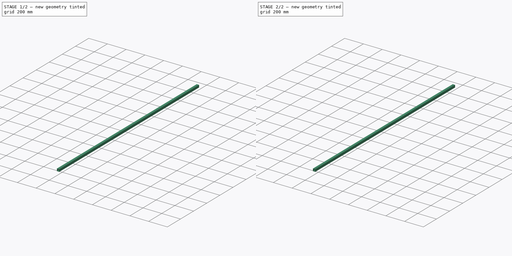
[diagram: build sequence overview — one tinted view per stage of 2, left to right]
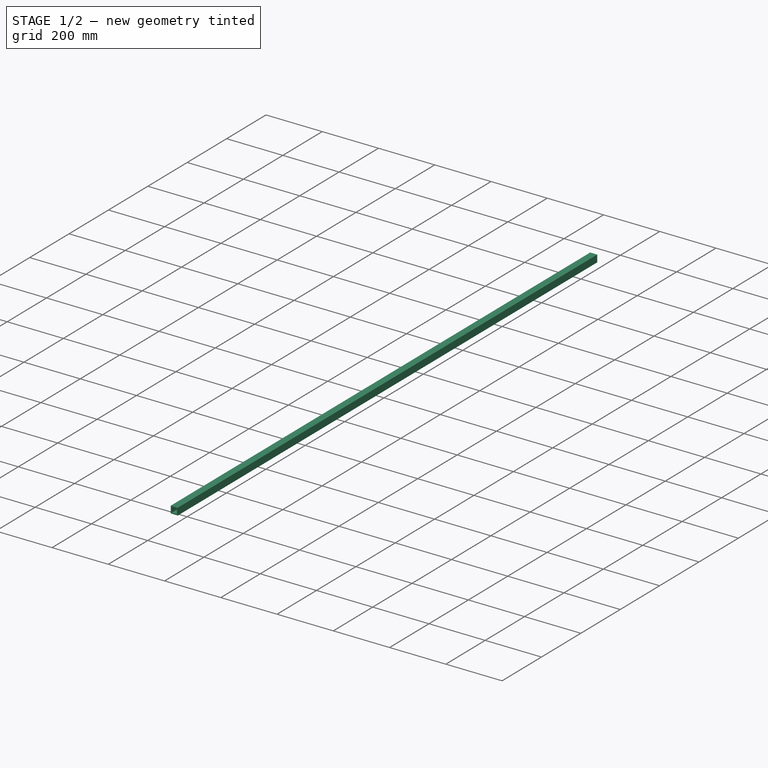
[diagram: stage 1 of 2 — iso view after this stage's code; geometry added in this stage tinted green]
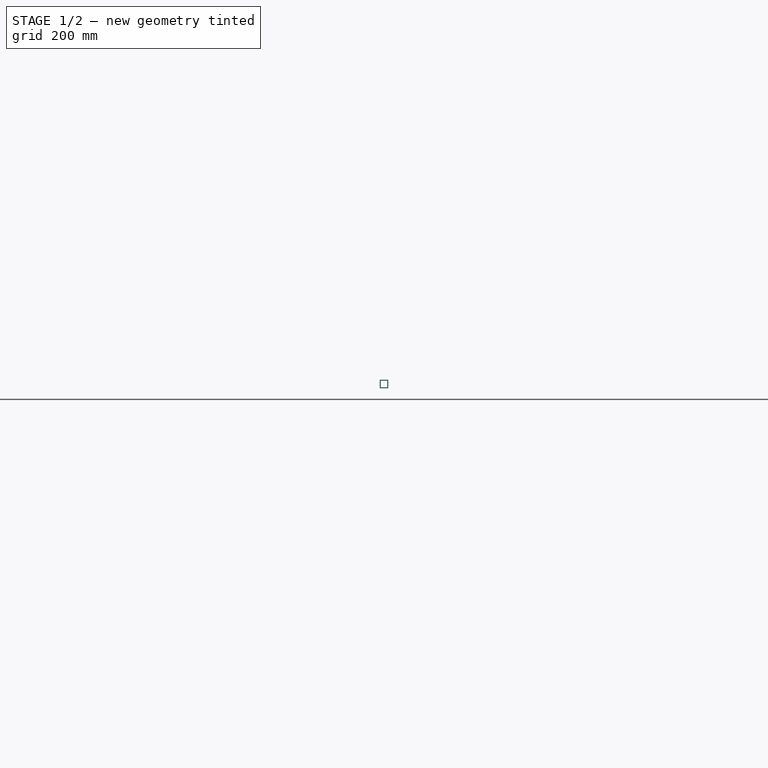
[diagram: stage 1 of 2 — front view after this stage's code; geometry added in this stage tinted green]
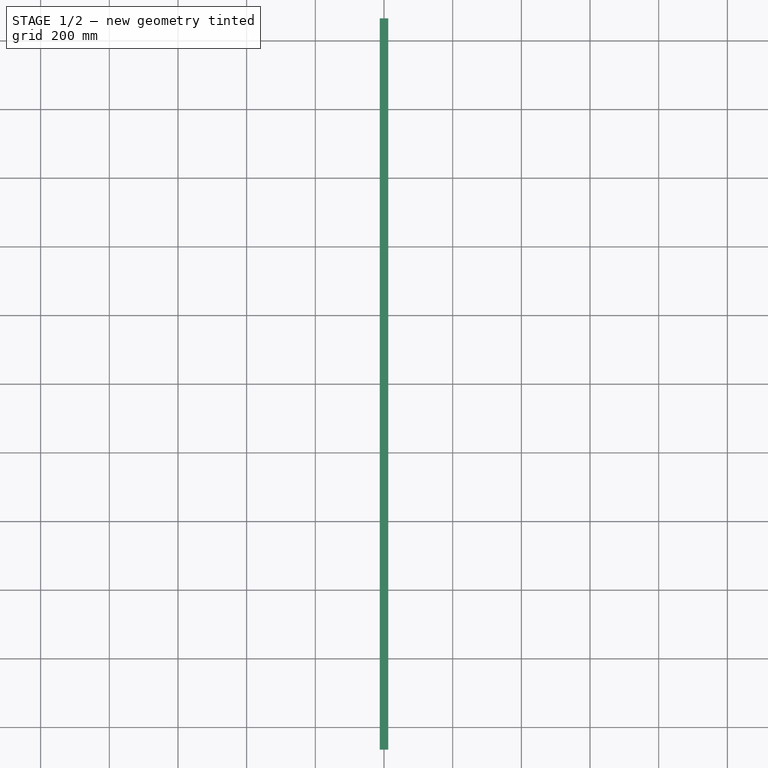
[diagram: stage 1 of 2 — top view after this stage's code; geometry added in this stage tinted green]
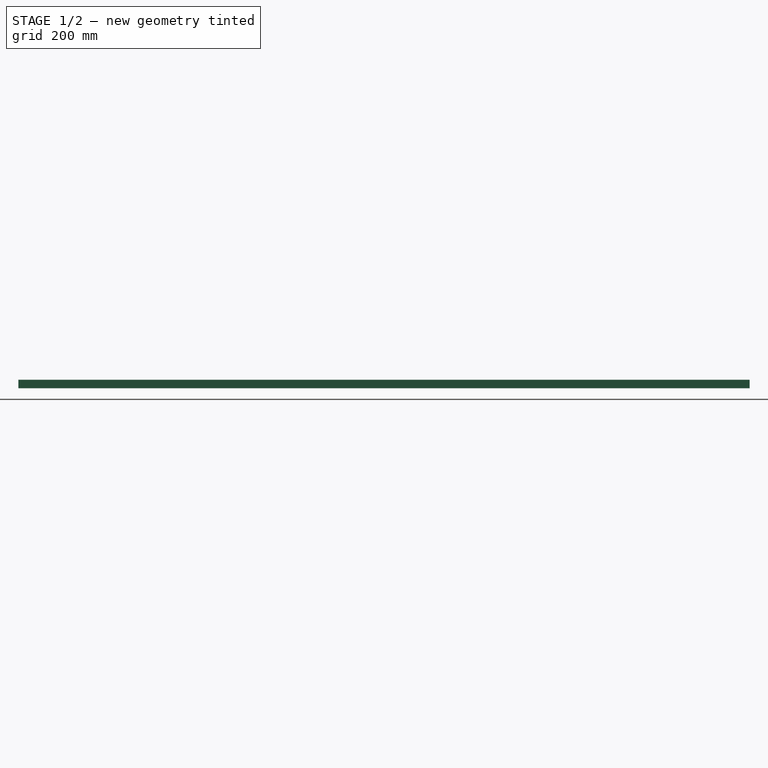
[diagram: stage 1 of 2 — right view after this stage's code; geometry added in this stage tinted green]
FCSTD DOCUMENT  (FreeCAD 0.15R4671 (Git))
Label: Tube_25x25x3_L2130
License: All rights reserved
LicenseURL: http://en.wikipedia.org/wiki/All_rights_reserved
objects: Sketcher::SketchObject×2, PartDesign::Pad×1, PartDesign::Pocket×1
note: 6 computed .brp shape members not serialized (recipe doc carries the construction recipe); baked Part::Feature solids carry a one-line shape summary decoded from their .brp

FEATURE [Sketcher::SketchObject] Sketch
  Placement = pos=(0,0,0) rot=(-1,0,0;4.71239rad)
  sketch-geometry (10):
    g0: LineSegment StartX=12.5 StartY=-12.5 StartZ=0 EndX=12.5 EndY=12.5 EndZ=0
    g1: LineSegment StartX=12.5 StartY=12.5 StartZ=0 EndX=-12.5 EndY=12.5 EndZ=0
    g2: LineSegment StartX=-12.5 StartY=12.5 StartZ=0 EndX=-12.5 EndY=-12.5 EndZ=0
    g3: LineSegment StartX=-12.5 StartY=-12.5 StartZ=0 EndX=12.5 EndY=-12.5 EndZ=0
    g4: Circle [constr] CenterX=0 CenterY=0 CenterZ=0 NormalX=0 NormalY=0 NormalZ=1 Radius=17.6777
    g5: LineSegment StartX=9.5 StartY=-9.5 StartZ=0 EndX=9.5 EndY=9.5 EndZ=0
    g6: LineSegment StartX=9.5 StartY=9.5 StartZ=0 EndX=-9.5 EndY=9.5 EndZ=0
    g7: LineSegment StartX=-9.5 StartY=9.5 StartZ=0 EndX=-9.5 EndY=-9.5 EndZ=0
    g8: LineSegment StartX=-9.5 StartY=-9.5 StartZ=0 EndX=9.5 EndY=-9.5 EndZ=0
    g9: Circle [constr] CenterX=0 CenterY=0 CenterZ=0 NormalX=0 NormalY=0 NormalZ=1 Radius=13.435
  constraints (30):
    c: Coincident(g0,g1)
    c: Coincident(g1,g2)
    c: Coincident(g2,g3)
    c: Coincident(g3,g0)
    c: Equal(g0,g1)
    c: Equal(g0,g2)
    c: Equal(g0,g3)
    c: PointOnObject(g0,g4)
    c: PointOnObject(g1,g4)
    c: PointOnObject(g2,g4)
    c: PointOnObject(g3,g4)
    c: Coincident(g1,g-1)
    c: Horizontal(g1)
    c: Distance(g1) = 25
    c: Coincident(g4,g-1)
    c: Coincident(g5,g6)
    c: Coincident(g6,g7)
    c: Coincident(g7,g8)
    c: Coincident(g8,g5)
    c: Equal(g5,g6)
    c: Equal(g5,g7)
    c: Equal(g5,g8)
    c: PointOnObject(g5,g9)
    c: PointOnObject(g6,g9)
    c: PointOnObject(g7,g9)
    c: PointOnObject(g8,g9)
    c: Coincident(g6,g-1)
    c: DistanceY(g1,g6) = -3
    c: Horizontal(g6)
    c: Coincident(g9,g-1)
FEATURE [PartDesign::Pad] Pad
  Length = 2130
  Length2 = 100
  Midplane = true
  Placement = pos=(0,0,0) rot=(-1,0,0;4.71239rad)
  Sketch = -> Sketch
  Type = 0
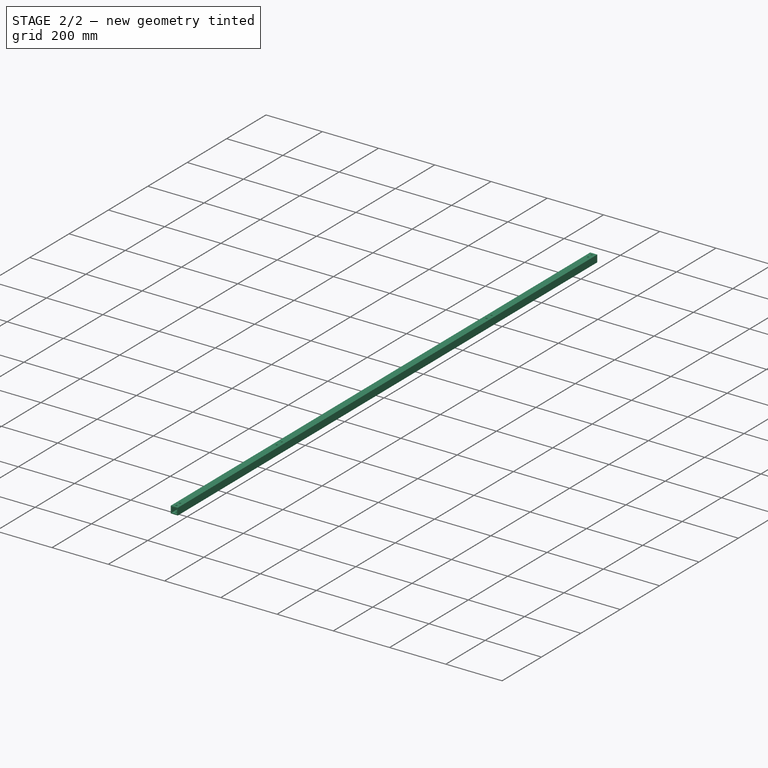
[diagram: stage 2 of 2 — iso view after this stage's code; geometry added in this stage tinted green]
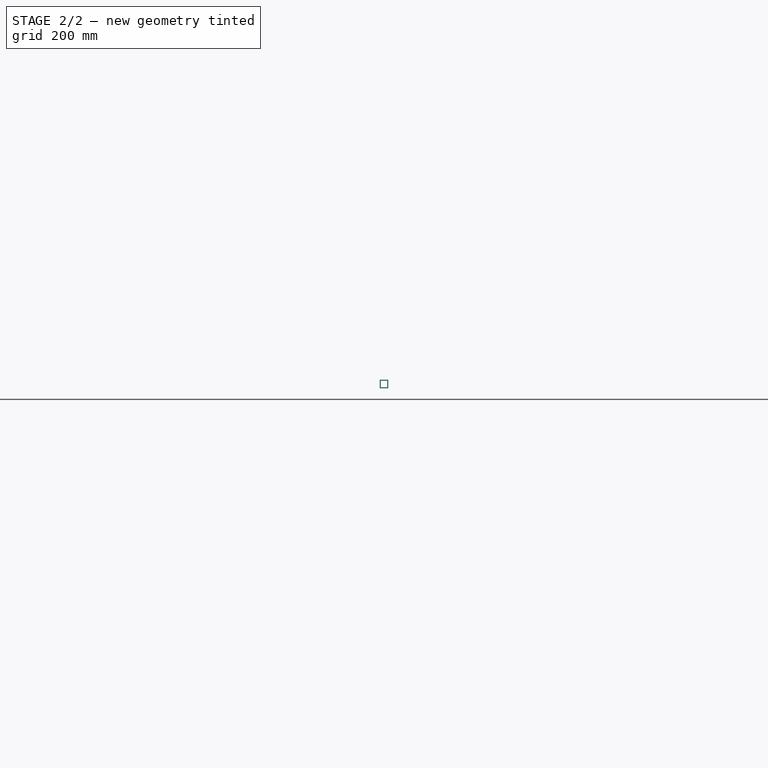
[diagram: stage 2 of 2 — front view after this stage's code; geometry added in this stage tinted green]
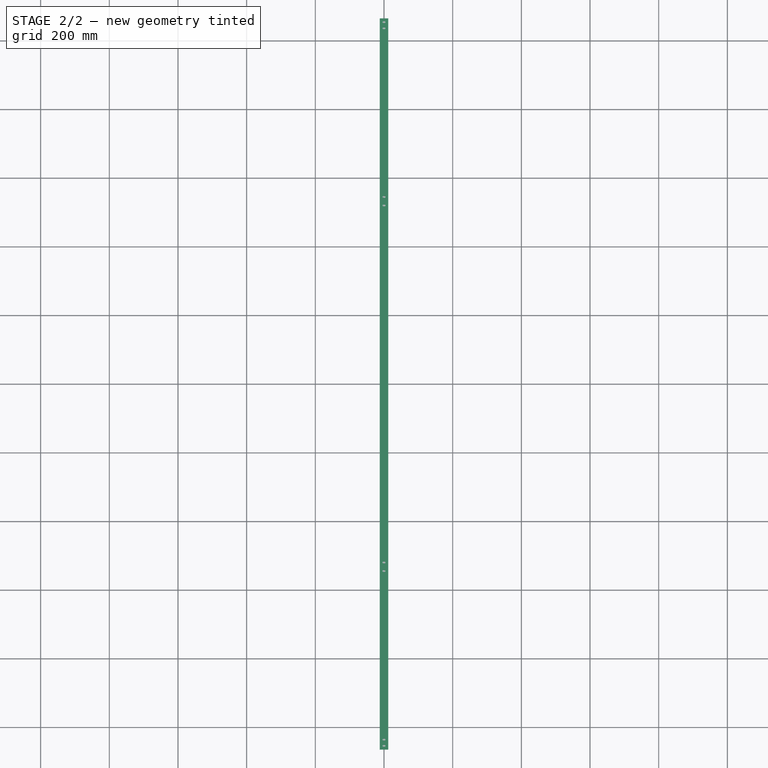
[diagram: stage 2 of 2 — top view after this stage's code; geometry added in this stage tinted green]
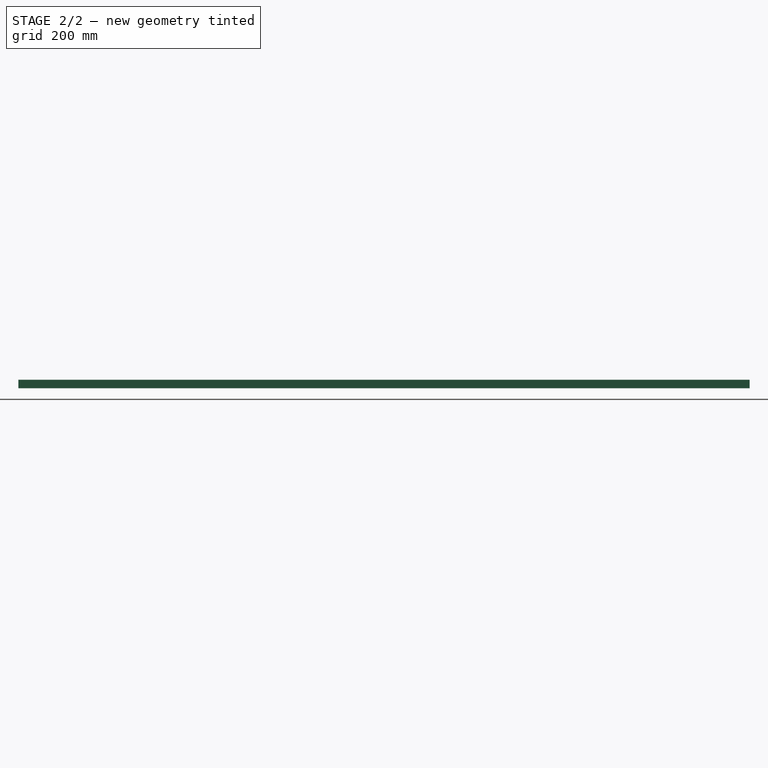
[diagram: stage 2 of 2 — right view after this stage's code; geometry added in this stage tinted green]
FEATURE [Sketcher::SketchObject] Sketch001
  ExternalGeometry = -> [Pad]
  Placement = pos=(0,0,12.5) rot=(0,0,1;3.14159rad)
  Support = -> Pad [Face2]
  sketch-geometry (16):
    g0: Circle CenterX=0 CenterY=1054 CenterZ=0 NormalX=0 NormalY=0 NormalZ=1 Radius=3.3
    g1: Circle CenterX=0 CenterY=1036 CenterZ=0 NormalX=0 NormalY=0 NormalZ=1 Radius=3.3
    g2: Circle CenterX=0 CenterY=545 CenterZ=0 NormalX=0 NormalY=0 NormalZ=1 Radius=3.3
    g3: Circle CenterX=0 CenterY=520 CenterZ=0 NormalX=0 NormalY=0 NormalZ=1 Radius=3.3
    g4: Circle CenterX=0 CenterY=-520 CenterZ=0 NormalX=0 NormalY=0 NormalZ=1 Radius=3.3
    g5: Circle CenterX=0 CenterY=-545 CenterZ=0 NormalX=0 NormalY=0 NormalZ=1 Radius=3.3
    g6: Circle CenterX=0 CenterY=-1036 CenterZ=0 NormalX=0 NormalY=0 NormalZ=1 Radius=3.3
    g7: Circle CenterX=0 CenterY=-1054 CenterZ=0 NormalX=0 NormalY=0 NormalZ=1 Radius=3.3
    g8: LineSegment [constr] StartX=0 StartY=1054 StartZ=0 EndX=0 EndY=1045 EndZ=0
    g9: LineSegment [constr] StartX=0 StartY=1045 StartZ=0 EndX=0 EndY=1036 EndZ=0
    g10: LineSegment [constr] StartX=0 StartY=545 StartZ=0 EndX=0 EndY=532.5 EndZ=0
    g11: LineSegment [constr] StartX=0 StartY=532.5 StartZ=0 EndX=0 EndY=520 EndZ=0
    g12: LineSegment [constr] StartX=0 StartY=-520 StartZ=0 EndX=0 EndY=-532.5 EndZ=0
    g13: LineSegment [constr] StartX=0 StartY=-545 StartZ=0 EndX=0 EndY=-532.5 EndZ=0
    g14: LineSegment [constr] StartX=0 StartY=-1036 StartZ=0 EndX=0 EndY=-1045 EndZ=0
    g15: LineSegment [constr] StartX=0 StartY=-1045 StartZ=0 EndX=0 EndY=-1054 EndZ=0
  constraints (36):
    c: PointOnObject(g2,g-2)
    c: PointOnObject(g3,g-2)
    c: PointOnObject(g4,g-2)
    c: PointOnObject(g5,g-2)
    c: PointOnObject(g6,g-2)
    c: PointOnObject(g7,g-2)
    c: DistanceY(g7,g6) = 18
    c: Distance(g4,g5) = 25
    c: Distance(g2,g3) = 25
    c: PointOnObject(g0,g-2)
    c: PointOnObject(g1,g-2)
    c: Distance(g0,g1) = 18
    c: Coincident(g8,g0)
    c: Coincident(g9,g8)
    c: Coincident(g9,g1)
    c: Equal(g8,g9)
    c: DistanceY(g-3,g8) = -20
    c: Coincident(g10,g2)
    c: Coincident(g11,g10)
    c: Coincident(g11,g3)
    c: Equal(g10,g11)
    c: Coincident(g12,g4)
    c: Coincident(g13,g12)
    c: Coincident(g13,g5)
    c: Equal(g12,g13)
    c: Coincident(g14,g6)
    c: Coincident(g15,g14)
    c: Coincident(g15,g7)
    c: Equal(g14,g15)
    c: Symmetric(g10,g12,g-1)
    c: DistanceY(g10,g12) = -1065
    c: Radius(g0) = 3.3
    c: Equal(g0, g1-g7) x7
    c: PointOnObject(g8,g-2)
    c: PointOnObject(g10,g-2)
    c: Symmetric(g14,g8,g-1)
FEATURE [PartDesign::Pocket] Pocket
  Length = 5
  Placement = pos=(0,0,0) rot=(-1,0,0;4.71239rad)
  Sketch = -> Sketch001
  Type = 1
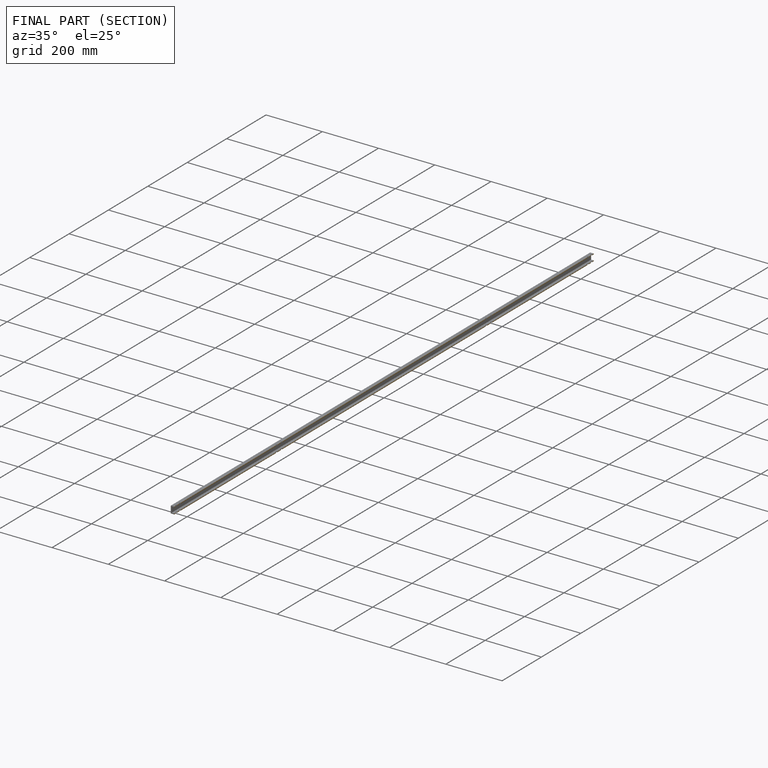
[diagram: finished part — half-section view (interior)]
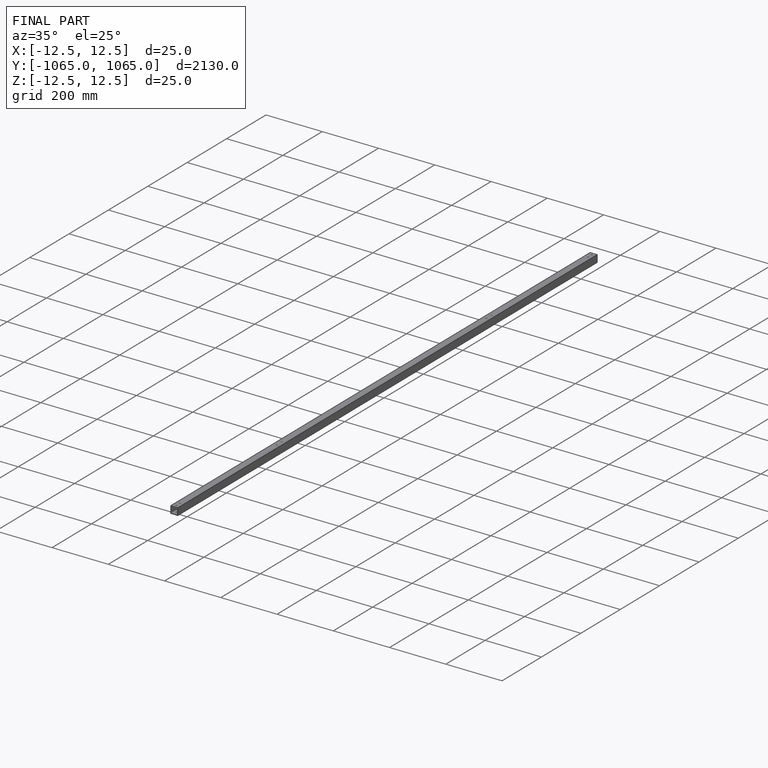
[diagram: finished part — iso view with bounding-box wireframe]
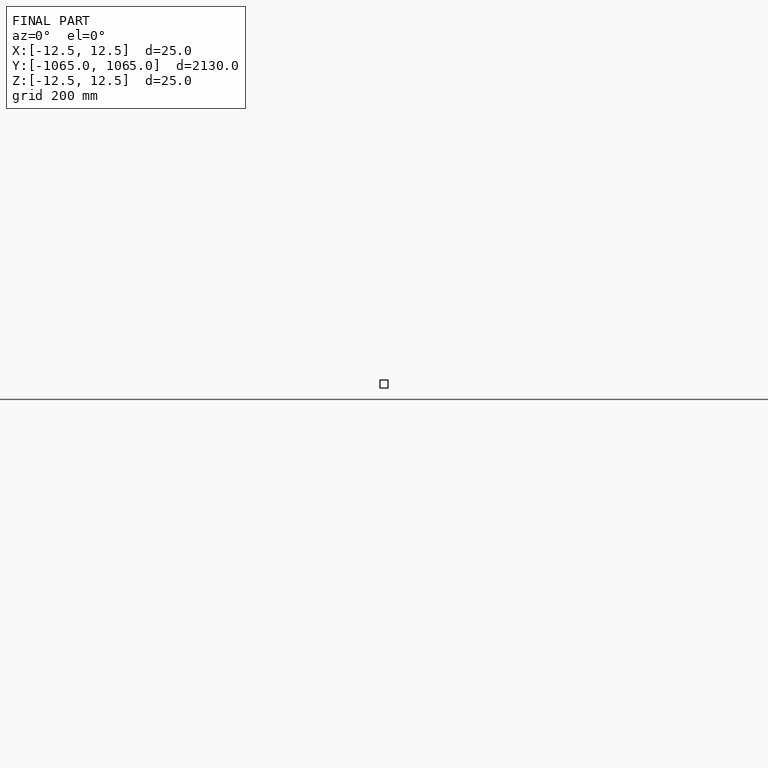
[diagram: finished part — front view with bounding-box wireframe]
